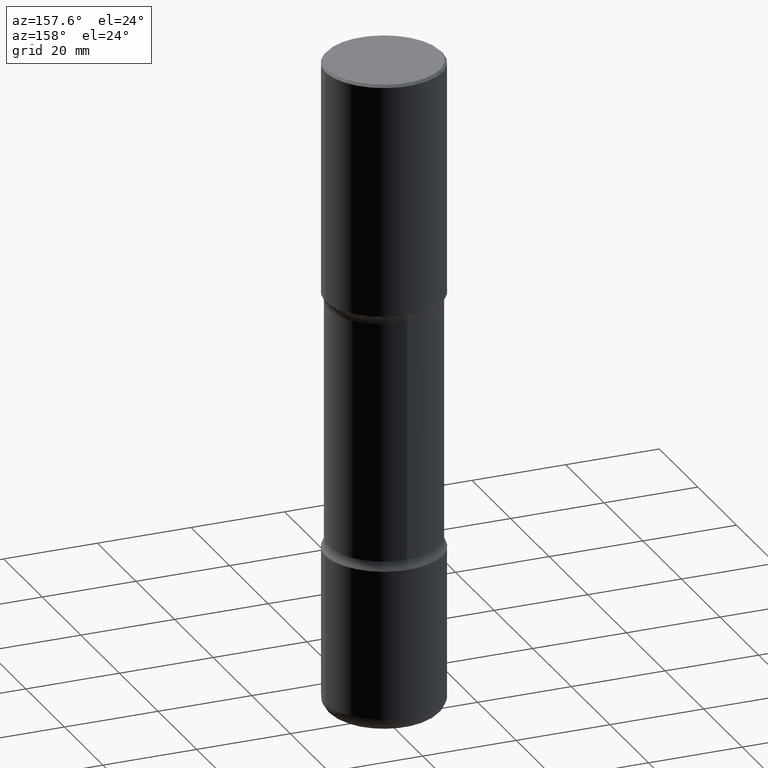
[diagram: clean part render]
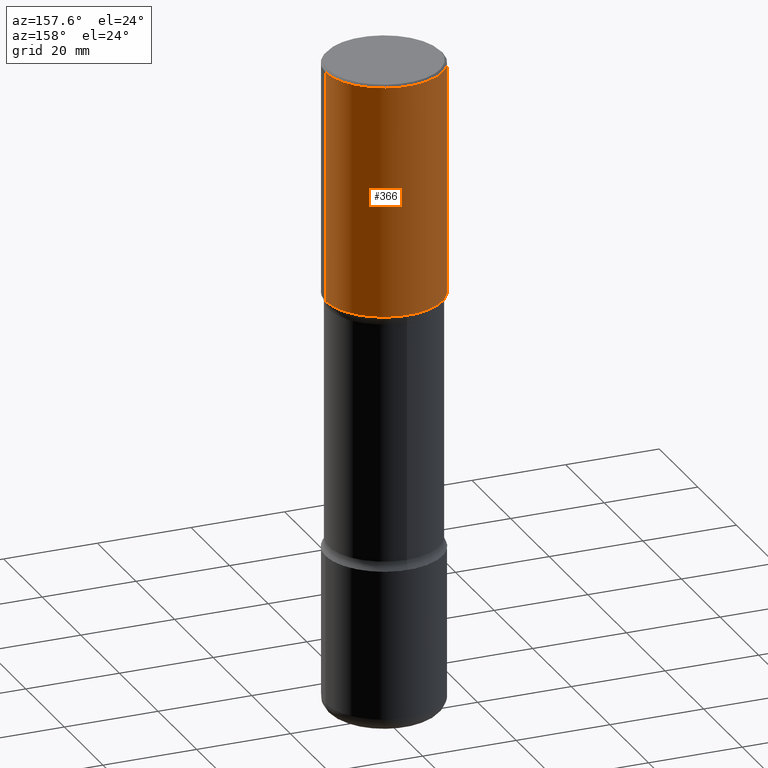
[diagram: same view with one face highlighted and labeled with its STEP entity id]
A machine part, auxiliary view. The second image highlights one B-rep face of the part: STEP entity #366.
In plain terms, the highlighted cylindrical surface (partial cylindrical patch) has radius 12.5006 mm, axis along (-0, 0, 1).
Its self-contained STEP definition (entity closure, byte-faithful):
#16 = DIRECTION ( 'NONE',  ( 1.000000000000000000, -6.982962677686266711E-15, 4.876176775795935793E-29 ) ) ;
#21 = CARTESIAN_POINT ( 'NONE',  ( -0.4921500000000000874, 3.366835455046433267E-15, -0.02000000000000010103 ) ) ;
#48 = CARTESIAN_POINT ( 'NONE',  ( 4.890937612370298557E-31, -6.982962677686327354E-17, -0.02000000000000010103 ) ) ;
#56 = CYLINDRICAL_SURFACE ( 'NONE', #238, 0.4921500000000002539 ) ;
#82 = ORIENTED_EDGE ( 'NONE', *, *, #165, .F. ) ;
#88 = CARTESIAN_POINT ( 'NONE',  ( 4.813905344975440153E-29, -6.872981015512730130E-15, -1.968499999999999472 ) ) ;
#100 = EDGE_CURVE ( 'NONE', #516, #354, #185, .T. ) ;
#103 = AXIS2_PLACEMENT_3D ( 'NONE', #48, #437, #161 ) ;
#114 = DIRECTION ( 'NONE',  ( -2.445468806185136877E-29, 3.491481338843145188E-15, 1.000000000000000000 ) ) ;
#138 = DIRECTION ( 'NONE',  ( -2.445468806185136597E-29, 3.491481338843145583E-15, 1.000000000000000000 ) ) ;
#161 = DIRECTION ( 'NONE',  ( 1.000000000000000000, -6.982962677686265922E-15, 0.000000000000000000 ) ) ;
#164 = DIRECTION ( 'NONE',  ( 1.000000000000000000, -6.982962677686267499E-15, 0.000000000000000000 ) ) ;
#165 = EDGE_CURVE ( 'NONE', #415, #516, #529, .T. ) ;
#185 = CIRCLE ( 'NONE', #103, 0.4921500000000000874 ) ;
#187 = DIRECTION ( 'NONE',  ( -2.445468806185136877E-29, 3.491481338843145188E-15, 1.000000000000000000 ) ) ;
#192 = LINE ( 'NONE', #311, #349 ) ;
#193 = VECTOR ( 'NONE', #114, 39.37007874015748143 ) ;
#204 = CARTESIAN_POINT ( 'NONE',  ( 0.4921500000000003094, -1.030964609733602906E-14, -1.968499999999999472 ) ) ;
#220 = EDGE_CURVE ( 'NONE', #415, #431, #301, .T. ) ;
#238 = AXIS2_PLACEMENT_3D ( 'NONE', #446, #398, #16 ) ;
#270 = ORIENTED_EDGE ( 'NONE', *, *, #220, .T. ) ;
#274 = CARTESIAN_POINT ( 'NONE',  ( 0.4921500000000002539, -3.436665081823297749E-15, 2.399810400207971004E-29 ) ) ;
#301 = CIRCLE ( 'NONE', #468, 0.4921500000000003094 ) ;
#311 = CARTESIAN_POINT ( 'NONE',  ( -0.4921500000000002539, 3.496936074043334869E-15, -2.420853904668952910E-29 ) ) ;
#349 = VECTOR ( 'NONE', #187, 39.37007874015748143 ) ;
#353 = ORIENTED_EDGE ( 'NONE', *, *, #372, .T. ) ;
#354 = VERTEX_POINT ( 'NONE', #21 ) ;
#366 = ADVANCED_FACE ( 'NONE', ( #402 ), #56, .T. ) ;
#372 = EDGE_CURVE ( 'NONE', #431, #354, #192, .T. ) ;
#398 = DIRECTION ( 'NONE',  ( -2.445468806185136597E-29, 3.491481338843145583E-15, 1.000000000000000000 ) ) ;
#402 = FACE_OUTER_BOUND ( 'NONE', #408, .T. ) ;
#408 = EDGE_LOOP ( 'NONE', ( #270, #353, #429, #82 ) ) ;
#412 = CARTESIAN_POINT ( 'NONE',  ( -0.4921500000000003650, 2.553075289854047247E-17, -1.968499999999999472 ) ) ;
#415 = VERTEX_POINT ( 'NONE', #204 ) ;
#429 = ORIENTED_EDGE ( 'NONE', *, *, #100, .F. ) ;
#431 = VERTEX_POINT ( 'NONE', #412 ) ;
#437 = DIRECTION ( 'NONE',  ( -2.445468806185136597E-29, 3.491481338843145583E-15, 1.000000000000000000 ) ) ;
#446 = CARTESIAN_POINT ( 'NONE',  ( 0.000000000000000000, 0.000000000000000000, 0.000000000000000000 ) ) ;
#468 = AXIS2_PLACEMENT_3D ( 'NONE', #88, #138, #164 ) ;
#503 = CARTESIAN_POINT ( 'NONE',  ( 0.4921500000000000874, -3.446223716380123532E-15, -0.02000000000000010103 ) ) ;
#516 = VERTEX_POINT ( 'NONE', #503 ) ;
#529 = LINE ( 'NONE', #274, #193 ) ;